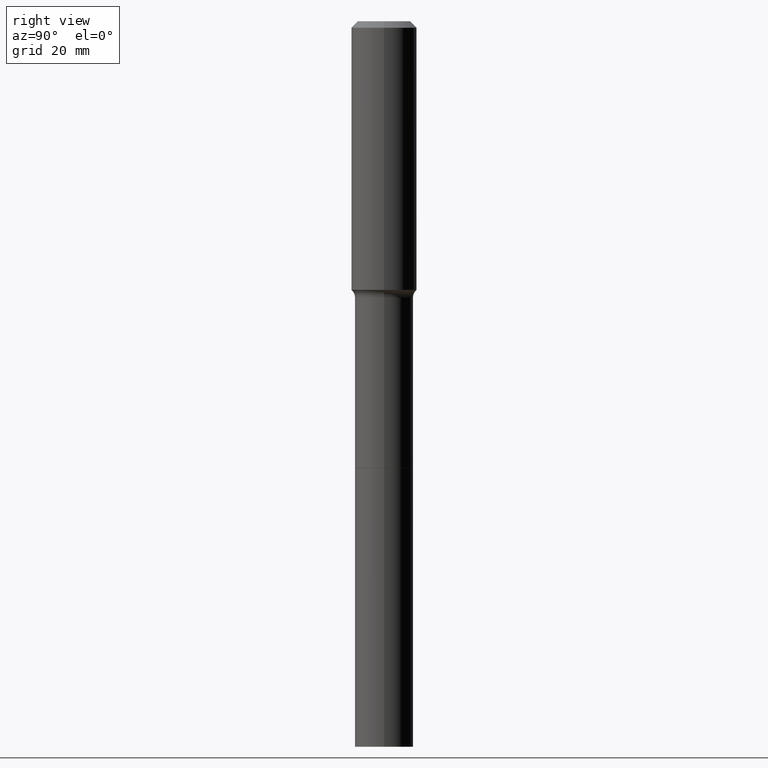
[diagram: clean part render]
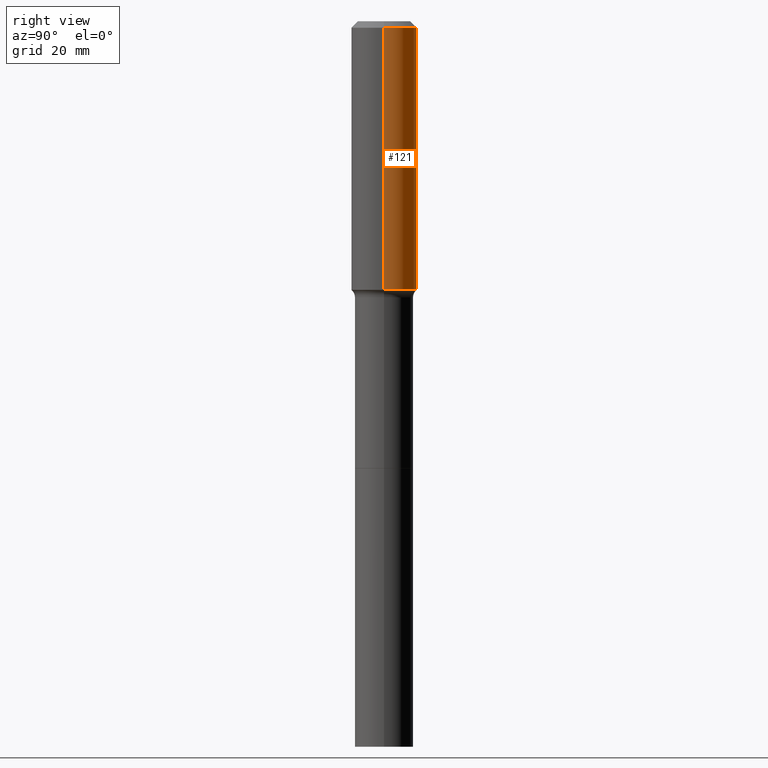
[diagram: same view with one face highlighted and labeled with its STEP entity id]
A machine part, right view. The second image highlights one B-rep face of the part: STEP entity #121.
In plain terms, the highlighted cylindrical surface (edge-blend (fillet) strip) has radius 7.0002 mm, axis along (-0, 0, 1).
Its self-contained STEP definition (entity closure, byte-faithful):
#6 = EDGE_LOOP ( 'NONE', ( #255, #435, #428, #126 ) ) ;
#43 = DIRECTION ( 'NONE',  ( -2.445468806185136877E-29, 3.491481338843145188E-15, 1.000000000000000000 ) ) ;
#51 = DIRECTION ( 'NONE',  ( -2.445468806185136597E-29, 3.491481338843145583E-15, 1.000000000000000000 ) ) ;
#68 = EDGE_CURVE ( 'NONE', #215, #512, #484, .T. ) ;
#72 = LINE ( 'NONE', #306, #180 ) ;
#92 = CIRCLE ( 'NONE', #379, 0.2756000000000000116 ) ;
#94 = AXIS2_PLACEMENT_3D ( 'NONE', #235, #277, #427 ) ;
#99 = DIRECTION ( 'NONE',  ( 1.000000000000000000, -6.982962677686265922E-15, 4.876176775795935793E-29 ) ) ;
#113 = EDGE_CURVE ( 'NONE', #468, #512, #92, .T. ) ;
#119 = CARTESIAN_POINT ( 'NONE',  ( 0.2756000000000002892, -9.812454499037325729E-15, -2.259198666569575131 ) ) ;
#121 = ADVANCED_FACE ( 'NONE', ( #182 ), #333, .T. ) ;
#126 = ORIENTED_EDGE ( 'NONE', *, *, #405, .F. ) ;
#180 = VECTOR ( 'NONE', #309, 39.37007874015748143 ) ;
#182 = FACE_OUTER_BOUND ( 'NONE', #6, .T. ) ;
#193 = CIRCLE ( 'NONE', #94, 0.2756000000000002892 ) ;
#198 = CARTESIAN_POINT ( 'NONE',  ( -0.2756000000000000116, -2.081944438477174284E-15, -0.05512000000000035621 ) ) ;
#209 = CARTESIAN_POINT ( 'NONE',  ( -0.2756000000000001782, 1.958255779754837378E-15, -1.355658510874252848E-29 ) ) ;
#211 = AXIS2_PLACEMENT_3D ( 'NONE', #265, #51, #99 ) ;
#215 = VERTEX_POINT ( 'NONE', #498 ) ;
#220 = DIRECTION ( 'NONE',  ( 1.000000000000000000, -6.982962677686265922E-15, 0.000000000000000000 ) ) ;
#235 = CARTESIAN_POINT ( 'NONE',  ( 5.524799866070951435E-29, -7.887949985066989197E-15, -2.259198666569575131 ) ) ;
#241 = VERTEX_POINT ( 'NONE', #119 ) ;
#255 = ORIENTED_EDGE ( 'NONE', *, *, #298, .T. ) ;
#265 = CARTESIAN_POINT ( 'NONE',  ( 0.000000000000000000, 0.000000000000000000, 0.000000000000000000 ) ) ;
#277 = DIRECTION ( 'NONE',  ( -2.445468806185136597E-29, 3.491481338843145583E-15, 1.000000000000000000 ) ) ;
#284 = VECTOR ( 'NONE', #43, 39.37007874015748143 ) ;
#289 = CARTESIAN_POINT ( 'NONE',  ( 0.2756000000000000116, -2.116954965367370658E-15, -0.05512000000000035621 ) ) ;
#298 = EDGE_CURVE ( 'NONE', #241, #215, #193, .T. ) ;
#301 = DIRECTION ( 'NONE',  ( -2.445468806185136597E-29, 3.491481338843145583E-15, 1.000000000000000000 ) ) ;
#306 = CARTESIAN_POINT ( 'NONE',  ( 0.2756000000000001782, -1.924504513970336137E-15, 1.343874319409360828E-29 ) ) ;
#309 = DIRECTION ( 'NONE',  ( -2.445468806185136877E-29, 3.491481338843145188E-15, 1.000000000000000000 ) ) ;
#333 = CYLINDRICAL_SURFACE ( 'NONE', #211, 0.2756000000000001782 ) ;
#379 = AXIS2_PLACEMENT_3D ( 'NONE', #448, #301, #220 ) ;
#405 = EDGE_CURVE ( 'NONE', #241, #468, #72, .T. ) ;
#427 = DIRECTION ( 'NONE',  ( 1.000000000000000000, -6.982962677686265922E-15, 0.000000000000000000 ) ) ;
#428 = ORIENTED_EDGE ( 'NONE', *, *, #113, .F. ) ;
#435 = ORIENTED_EDGE ( 'NONE', *, *, #68, .T. ) ;
#448 = CARTESIAN_POINT ( 'NONE',  ( 1.347942405969256063E-30, -1.924504513970354330E-16, -0.05512000000000035621 ) ) ;
#468 = VERTEX_POINT ( 'NONE', #289 ) ;
#484 = LINE ( 'NONE', #209, #284 ) ;
#498 = CARTESIAN_POINT ( 'NONE',  ( -0.2756000000000002892, -5.929694205312150241E-15, -2.259198666569575131 ) ) ;
#512 = VERTEX_POINT ( 'NONE', #198 ) ;